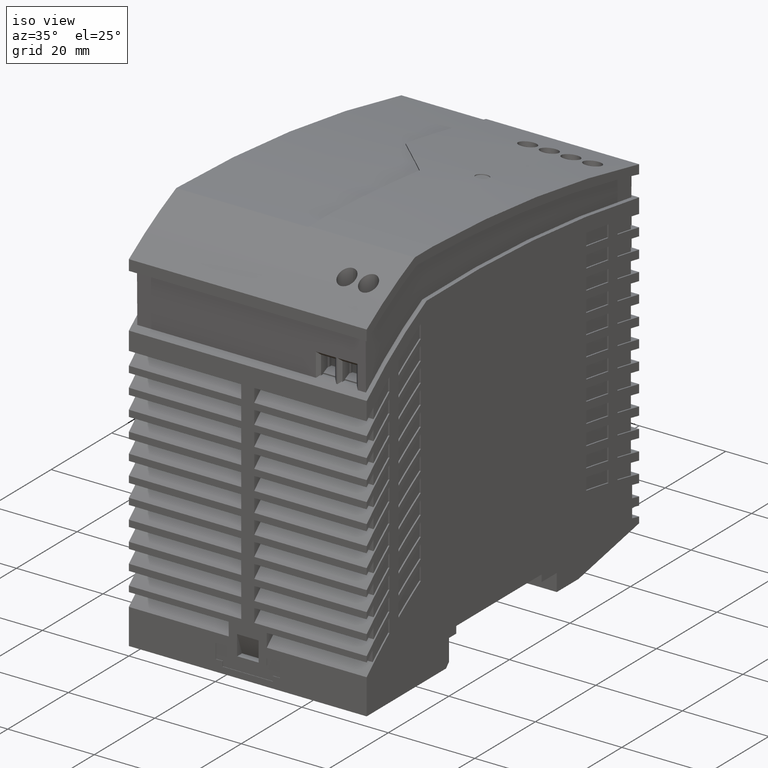
[diagram: clean part render]
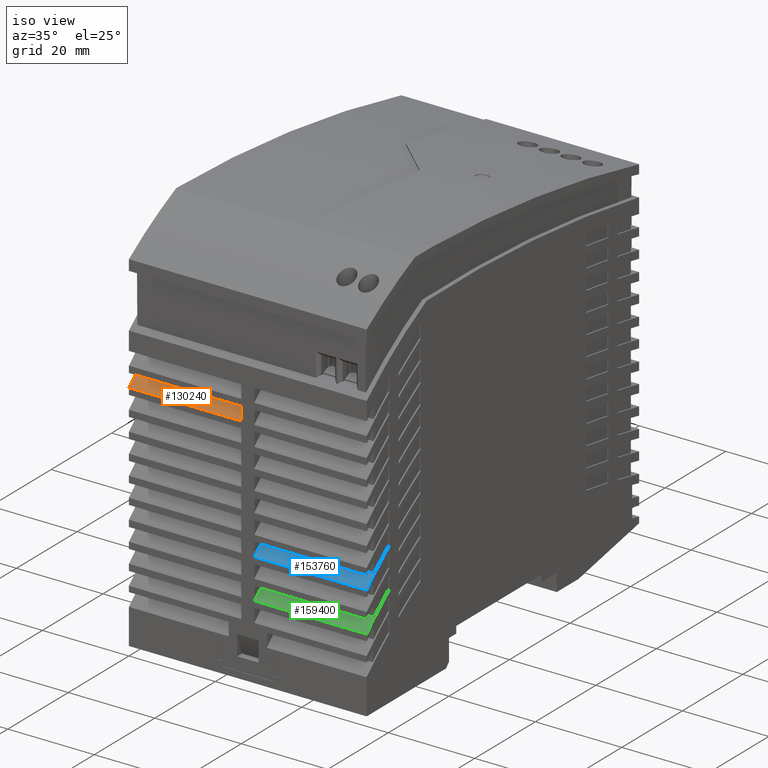
[diagram: same view with three faces highlighted in distinct colors, each labeled with its STEP entity id]
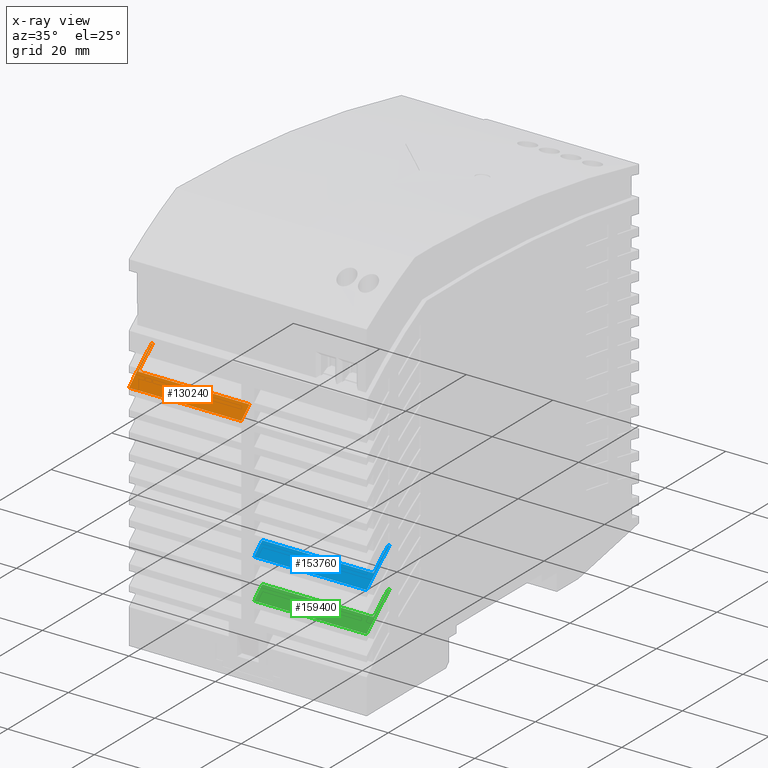
[diagram: x-ray of the same camera — body ghosted, the three highlighted faces saturated]
A machine part, iso view with three faces highlighted in distinct colors.
The next image is the same camera in x-ray (body ghosted, the three faces saturated) — at least one of them is partly hidden behind the body in this view.
Their STEP definitions:

[orange] entity #130240 — the highlighted cylindrical surface (partial cylindrical patch) has radius 111 mm, axis along (1, 0, 0).
#11980=CARTESIAN_POINT('',(30.4869845880804,-27.3590205851859,-54.));
#11990=DIRECTION('',(0.,0.,1.));
#12000=DIRECTION('',(0.,1.,0.));
#12010=AXIS2_PLACEMENT_3D('',#11980,#11990,#12000);
#12020=CIRCLE('',#12010,110.999999999996);
#19650=CARTESIAN_POINT('',(-37.4715236073768,60.4056714261642,-54.));
#19660=VERTEX_POINT('',#19650);
#19690=CARTESIAN_POINT('',(-45.0015236073532,54.0196322079584,-54.));
#19700=VERTEX_POINT('',#19690);
#19710=EDGE_CURVE('',#19660,#19700,#12020,.T.);
#128920=CARTESIAN_POINT('',(-42.3015236073671,56.4433246963183,-53.7));
#128930=VERTEX_POINT('',#128920);
#128960=CARTESIAN_POINT('',(30.4869845880804,-27.3590205851859,-53.7));
#128970=DIRECTION('',(0.,0.,1.));
#128980=DIRECTION('',(0.,1.,0.));
#128990=AXIS2_PLACEMENT_3D('',#128960,#128970,#128980);
#129000=CIRCLE('',#128990,110.999999999996);
#129010=CARTESIAN_POINT('',(-37.4715236073769,60.4056714261642,-53.7));
#129020=VERTEX_POINT('',#129010);
#129030=EDGE_CURVE('',#129020,#128930,#129000,.T.);
#129730=CARTESIAN_POINT('',(-37.4715236073768,60.4056714261643,-53.7));
#129740=DIRECTION('',(0.,0.,-1.));
#129750=VECTOR('',#129740,1.);
#129760=LINE('',#129730,#129750);
#129770=EDGE_CURVE('',#129020,#19660,#129760,.T.);
#129910=CARTESIAN_POINT('',(30.4869845880804,-27.3590205851859,-53.7));
#129920=DIRECTION('',(0.,0.,1.));
#129930=DIRECTION('',(0.,1.,0.));
#129940=AXIS2_PLACEMENT_3D('',#129910,#129920,#129930);
#129950=CYLINDRICAL_SURFACE('',#129940,110.999999999996);
#129960=ORIENTED_EDGE('',*,*,#19710,.T.);
#129970=ORIENTED_EDGE('',*,*,#129770,.T.);
#129980=ORIENTED_EDGE('',*,*,#129030,.F.);
#129990=CARTESIAN_POINT('',(-42.3015236073671,56.4433246963183,-28.));
#130000=DIRECTION('',(0.,0.,-1.));
#130010=VECTOR('',#130000,1.);
#130020=LINE('',#129990,#130010);
#130030=CARTESIAN_POINT('',(-42.3015236073671,56.4433246963183,-28.));
#130040=VERTEX_POINT('',#130030);
#130050=EDGE_CURVE('',#130040,#128930,#130020,.T.);
#130060=ORIENTED_EDGE('',*,*,#130050,.T.);
#130070=CARTESIAN_POINT('',(30.4869845880804,-27.3590205851859,-28.));
#130080=DIRECTION('',(0.,0.,1.));
#130090=DIRECTION('',(0.,1.,0.));
#130100=AXIS2_PLACEMENT_3D('',#130070,#130080,#130090);
#130110=CIRCLE('',#130100,110.999999999996);
#130120=CARTESIAN_POINT('',(-45.0015236073532,54.0196322079584,-28.));
#130130=VERTEX_POINT('',#130120);
#130140=EDGE_CURVE('',#130040,#130130,#130110,.T.);
#130150=ORIENTED_EDGE('',*,*,#130140,.F.);
#130160=CARTESIAN_POINT('',(-45.0015236073532,54.0196322079584,-25.));
#130170=DIRECTION('',(0.,0.,1.));
#130180=VECTOR('',#130170,1.);
#130190=LINE('',#130160,#130180);
#130200=EDGE_CURVE('',#19700,#130130,#130190,.T.);
#130210=ORIENTED_EDGE('',*,*,#130200,.T.);
#130220=EDGE_LOOP('',(#130210,#130150,#130060,#129980,#129970,#129960));
#130230=FACE_OUTER_BOUND('',#130220,.T.);
#130240=ADVANCED_FACE('',(#130230),#129950,.T.);

[blue] entity #153760 — the highlighted cylindrical surface (partial cylindrical patch) has radius 111 mm, axis along (1, 0, 0).
#46680=CARTESIAN_POINT('',(-45.0015236073532,26.4196322079584,1.));
#46690=VERTEX_POINT('',#46680);
#46720=CARTESIAN_POINT('',(30.4869845880704,-54.9590205851737,1.));
#46730=DIRECTION('',(0.,0.,1.));
#46740=DIRECTION('',(0.,1.,0.));
#46750=AXIS2_PLACEMENT_3D('',#46720,#46730,#46740);
#46760=CIRCLE('',#46750,110.999999999981);
#46770=CARTESIAN_POINT('',(-37.4715236073768,32.8056714261643,1.));
#46780=VERTEX_POINT('',#46770);
#46790=EDGE_CURVE('',#46780,#46690,#46760,.T.);
#134490=CARTESIAN_POINT('',(-45.0015236073532,26.4196322079584,-25.));
#134500=DIRECTION('',(0.,0.,1.));
#134510=VECTOR('',#134500,1.);
#134520=LINE('',#134490,#134510);
#153320=CARTESIAN_POINT('',(30.4869845880704,-54.9590205851737,-25.));
#153330=DIRECTION('',(0.,0.,1.));
#153340=DIRECTION('',(0.,1.,0.));
#153350=AXIS2_PLACEMENT_3D('',#153320,#153330,#153340);
#153360=CYLINDRICAL_SURFACE('',#153350,110.999999999981);
#153370=CARTESIAN_POINT('',(-45.0015236073532,26.4196322079584,-25.));
#153380=VERTEX_POINT('',#153370);
#153390=EDGE_CURVE('',#153380,#46690,#134520,.T.);
#153400=ORIENTED_EDGE('',*,*,#153390,.T.);
#153410=CARTESIAN_POINT('',(30.4869845880704,-54.9590205851737,-25.));
#153420=DIRECTION('',(0.,0.,1.));
#153430=DIRECTION('',(0.,1.,0.));
#153440=AXIS2_PLACEMENT_3D('',#153410,#153420,#153430);
#153450=CIRCLE('',#153440,110.999999999981);
#153460=CARTESIAN_POINT('',(-42.3015236073671,28.8433246963184,-25.));
#153470=VERTEX_POINT('',#153460);
#153480=EDGE_CURVE('',#153470,#153380,#153450,.T.);
#153490=ORIENTED_EDGE('',*,*,#153480,.T.);
#153500=CARTESIAN_POINT('',(-42.3015236073671,28.8433246963183,-25.));
#153510=DIRECTION('',(0.,0.,1.));
#153520=VECTOR('',#153510,1.);
#153530=LINE('',#153500,#153520);
#153540=CARTESIAN_POINT('',(-42.3015236073671,28.8433246963183,
0.700000000000003));
#153550=VERTEX_POINT('',#153540);
#153560=EDGE_CURVE('',#153470,#153550,#153530,.T.);
#153570=ORIENTED_EDGE('',*,*,#153560,.F.);
#153580=CARTESIAN_POINT('',(30.4869845880704,-54.9590205851737,
0.700000000000003));
#153590=DIRECTION('',(0.,0.,1.));
#153600=DIRECTION('',(0.,1.,0.));
#153610=AXIS2_PLACEMENT_3D('',#153580,#153590,#153600);
#153620=CIRCLE('',#153610,110.999999999981);
#153630=CARTESIAN_POINT('',(-37.4715236073769,32.8056714261643,
0.700000000000003));
#153640=VERTEX_POINT('',#153630);
#153650=EDGE_CURVE('',#153640,#153550,#153620,.T.);
#153660=ORIENTED_EDGE('',*,*,#153650,.T.);
#153670=CARTESIAN_POINT('',(-37.4715236073769,32.8056714261643,
0.700000000000003));
#153680=DIRECTION('',(0.,0.,1.));
#153690=VECTOR('',#153680,1.);
#153700=LINE('',#153670,#153690);
#153710=EDGE_CURVE('',#153640,#46780,#153700,.T.);
#153720=ORIENTED_EDGE('',*,*,#153710,.F.);
#153730=ORIENTED_EDGE('',*,*,#46790,.F.);
#153740=EDGE_LOOP('',(#153730,#153720,#153660,#153570,#153490,#153400));
#153750=FACE_OUTER_BOUND('',#153740,.T.);
#153760=ADVANCED_FACE('',(#153750),#153360,.T.);

[green] entity #159400 — the highlighted cylindrical surface (partial cylindrical patch) has radius 111 mm, axis along (1, 0, 0).
#46080=CARTESIAN_POINT('',(-45.0015236073532,17.2196322079585,1.));
#46090=VERTEX_POINT('',#46080);
#46120=CARTESIAN_POINT('',(30.4869845881078,-64.1590205852185,1.));
#46130=DIRECTION('',(0.,0.,1.));
#46140=DIRECTION('',(0.,1.,0.));
#46150=AXIS2_PLACEMENT_3D('',#46120,#46130,#46140);
#46160=CIRCLE('',#46150,111.000000000039);
#46170=CARTESIAN_POINT('',(-37.4715236073769,23.6056714261643,1.));
#46180=VERTEX_POINT('',#46170);
#46190=EDGE_CURVE('',#46180,#46090,#46160,.T.);
#137730=CARTESIAN_POINT('',(-45.0015236073532,17.2196322079585,-25.));
#137740=DIRECTION('',(0.,0.,1.));
#137750=VECTOR('',#137740,1.);
#137760=LINE('',#137730,#137750);
#154510=CARTESIAN_POINT('',(-42.3015236073671,19.6433246963183,-25.));
#154520=VERTEX_POINT('',#154510);
#154550=CARTESIAN_POINT('',(30.4869845881078,-64.1590205852185,-25.));
#154560=DIRECTION('',(0.,0.,1.));
#154570=DIRECTION('',(0.,1.,0.));
#154580=AXIS2_PLACEMENT_3D('',#154550,#154560,#154570);
#154590=CIRCLE('',#154580,111.000000000039);
#154600=CARTESIAN_POINT('',(-45.0015236073532,17.2196322079585,-25.));
#154610=VERTEX_POINT('',#154600);
#154620=EDGE_CURVE('',#154520,#154610,#154590,.T.);
#159060=CARTESIAN_POINT('',(30.4869845881078,-64.1590205852185,-25.));
#159070=DIRECTION('',(0.,0.,1.));
#159080=DIRECTION('',(0.,1.,0.));
#159090=AXIS2_PLACEMENT_3D('',#159060,#159070,#159080);
#159100=CYLINDRICAL_SURFACE('',#159090,111.000000000039);
#159110=EDGE_CURVE('',#154610,#46090,#137760,.T.);
#159120=ORIENTED_EDGE('',*,*,#159110,.T.);
#159130=ORIENTED_EDGE('',*,*,#154620,.T.);
#159140=CARTESIAN_POINT('',(-42.3015236073671,19.6433246963183,-25.));
#159150=DIRECTION('',(0.,0.,1.));
#159160=VECTOR('',#159150,1.);
#159170=LINE('',#159140,#159160);
#159180=CARTESIAN_POINT('',(-42.3015236073671,19.6433246963183,
0.700000000000003));
#159190=VERTEX_POINT('',#159180);
#159200=EDGE_CURVE('',#154520,#159190,#159170,.T.);
#159210=ORIENTED_EDGE('',*,*,#159200,.F.);
#159220=CARTESIAN_POINT('',(30.4869845881078,-64.1590205852185,
0.700000000000003));
#159230=DIRECTION('',(0.,0.,1.));
#159240=DIRECTION('',(0.,1.,0.));
#159250=AXIS2_PLACEMENT_3D('',#159220,#159230,#159240);
#159260=CIRCLE('',#159250,111.000000000039);
#159270=CARTESIAN_POINT('',(-37.4715236073768,23.6056714261643,
0.700000000000003));
#159280=VERTEX_POINT('',#159270);
#159290=EDGE_CURVE('',#159280,#159190,#159260,.T.);
#159300=ORIENTED_EDGE('',*,*,#159290,.T.);
#159310=CARTESIAN_POINT('',(-37.4715236073768,23.6056714261643,
0.700000000000003));
#159320=DIRECTION('',(0.,0.,1.));
#159330=VECTOR('',#159320,1.);
#159340=LINE('',#159310,#159330);
#159350=EDGE_CURVE('',#159280,#46180,#159340,.T.);
#159360=ORIENTED_EDGE('',*,*,#159350,.F.);
#159370=ORIENTED_EDGE('',*,*,#46190,.F.);
#159380=EDGE_LOOP('',(#159370,#159360,#159300,#159210,#159130,#159120));
#159390=FACE_OUTER_BOUND('',#159380,.T.);
#159400=ADVANCED_FACE('',(#159390),#159100,.T.);